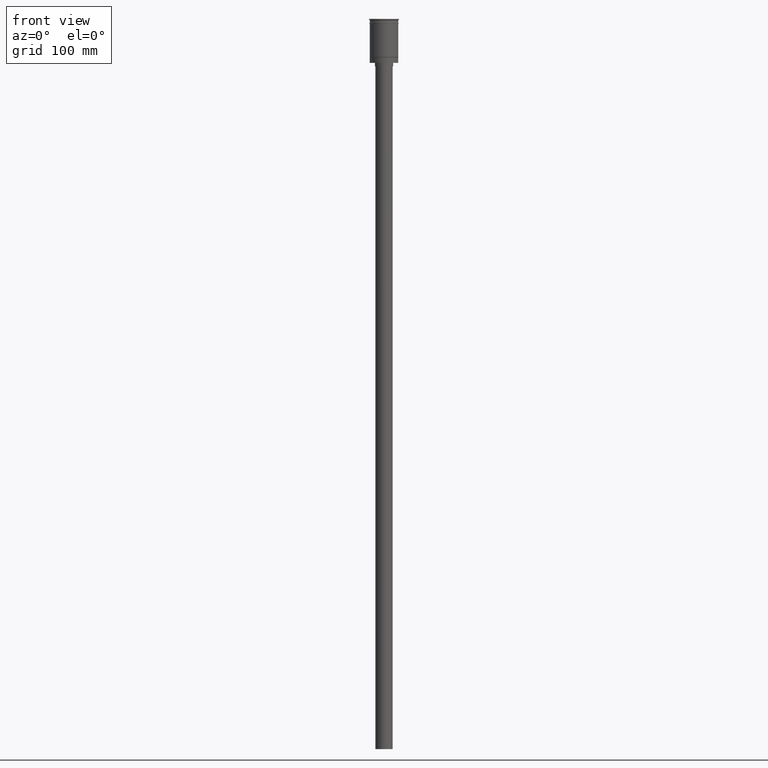
[diagram: clean part render]
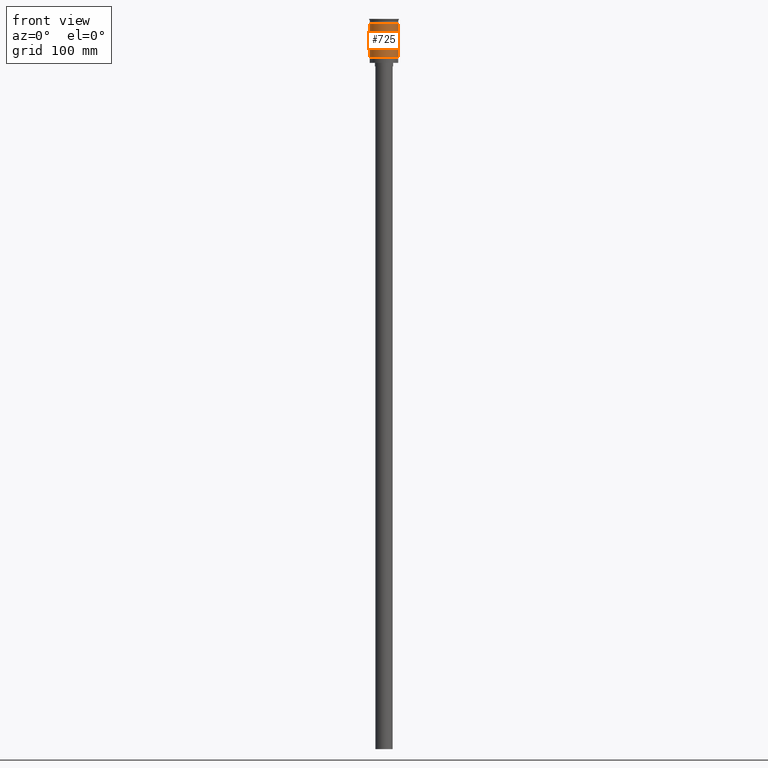
[diagram: same view with one face highlighted and labeled with its STEP entity id]
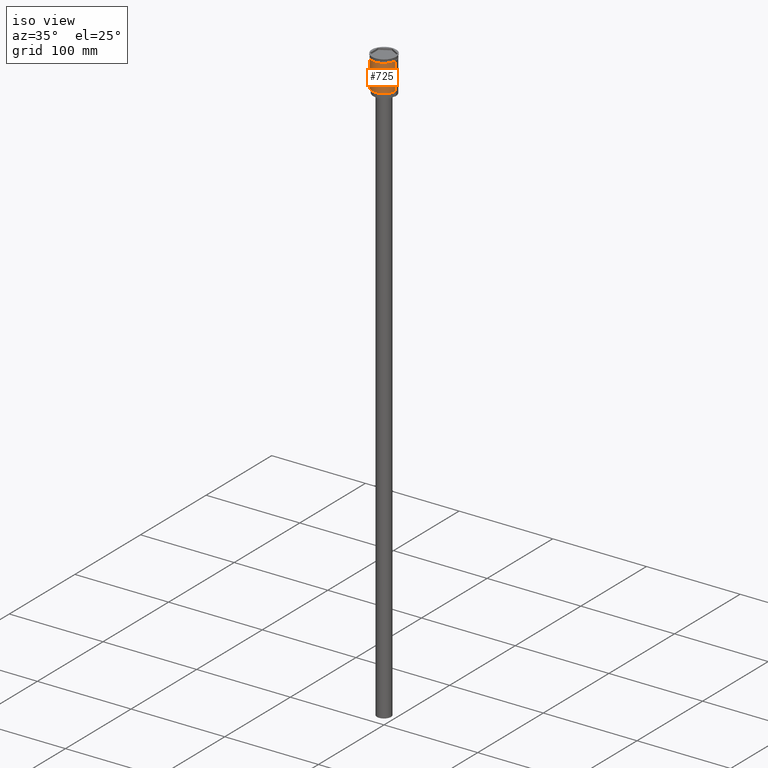
[diagram: same view with one face highlighted and labeled with its STEP entity id]
A machine part, front view. The second image highlights one B-rep face of the part: STEP entity #725.
A second angle (iso view) of the same face is appended — the face is thin or edge-on in the first view.
In plain terms, the highlighted cylindrical surface (edge-blend (fillet) strip) has radius 12.5 mm, axis along (-0, -0, 1).
Its self-contained STEP definition (entity closure, byte-faithful):
#16 = CARTESIAN_POINT ( 'NONE',  ( -12.49999999999999645, 1.530808498934191127E-15, 0.000000000000000000 ) ) ;
#48 = EDGE_CURVE ( 'NONE', #1187, #368, #1163, .T. ) ;
#84 = DIRECTION ( 'NONE',  ( 1.000000000000000000, 0.000000000000000000, 0.000000000000000000 ) ) ;
#107 = EDGE_CURVE ( 'NONE', #1187, #407, #1109, .T. ) ;
#119 = CARTESIAN_POINT ( 'NONE',  ( 0.000000000000000000, 0.000000000000000000, 0.000000000000000000 ) ) ;
#202 = ORIENTED_EDGE ( 'NONE', *, *, #1028, .T. ) ;
#284 = ORIENTED_EDGE ( 'NONE', *, *, #48, .T. ) ;
#288 = DIRECTION ( 'NONE',  ( 1.000000000000000000, 0.000000000000000000, 0.000000000000000000 ) ) ;
#294 = CARTESIAN_POINT ( 'NONE',  ( 12.49999999999999645, 0.000000000000000000, 0.000000000000000000 ) ) ;
#360 = FACE_OUTER_BOUND ( 'NONE', #989, .T. ) ;
#368 = VERTEX_POINT ( 'NONE', #1498 ) ;
#384 = CIRCLE ( 'NONE', #1058, 12.49999999999999822 ) ;
#407 = VERTEX_POINT ( 'NONE', #1004 ) ;
#408 = AXIS2_PLACEMENT_3D ( 'NONE', #119, #605, #84 ) ;
#457 = AXIS2_PLACEMENT_3D ( 'NONE', #1467, #728, #1237 ) ;
#605 = DIRECTION ( 'NONE',  ( -0.000000000000000000, -0.000000000000000000, 1.000000000000000000 ) ) ;
#656 = LINE ( 'NONE', #294, #1166 ) ;
#679 = VERTEX_POINT ( 'NONE', #1096 ) ;
#725 = ADVANCED_FACE ( 'NONE', ( #360 ), #1461, .T. ) ;
#727 = CARTESIAN_POINT ( 'NONE',  ( -12.49999999999999289, 0.000000000000000000, -33.30000000000005400 ) ) ;
#728 = DIRECTION ( 'NONE',  ( -0.000000000000000000, -0.000000000000000000, 1.000000000000000000 ) ) ;
#921 = VECTOR ( 'NONE', #1129, 1000.000000000000000 ) ;
#939 = DIRECTION ( 'NONE',  ( -0.000000000000000000, -0.000000000000000000, 1.000000000000000000 ) ) ;
#988 = EDGE_CURVE ( 'NONE', #407, #679, #384, .T. ) ;
#989 = EDGE_LOOP ( 'NONE', ( #1504, #284, #202, #1551 ) ) ;
#1004 = CARTESIAN_POINT ( 'NONE',  ( -12.50000000000000000, 1.530808498934191521E-15, -3.999999999999996447 ) ) ;
#1028 = EDGE_CURVE ( 'NONE', #368, #679, #656, .T. ) ;
#1058 = AXIS2_PLACEMENT_3D ( 'NONE', #1558, #939, #288 ) ;
#1096 = CARTESIAN_POINT ( 'NONE',  ( 12.49999999999999822, 0.000000000000000000, -3.999999999999996447 ) ) ;
#1109 = LINE ( 'NONE', #16, #921 ) ;
#1129 = DIRECTION ( 'NONE',  ( -0.000000000000000000, -0.000000000000000000, 1.000000000000000000 ) ) ;
#1163 = CIRCLE ( 'NONE', #457, 12.49999999999999645 ) ;
#1166 = VECTOR ( 'NONE', #1307, 1000.000000000000000 ) ;
#1187 = VERTEX_POINT ( 'NONE', #727 ) ;
#1237 = DIRECTION ( 'NONE',  ( -1.000000000000000000, 0.000000000000000000, 0.000000000000000000 ) ) ;
#1307 = DIRECTION ( 'NONE',  ( -0.000000000000000000, -0.000000000000000000, 1.000000000000000000 ) ) ;
#1461 = CYLINDRICAL_SURFACE ( 'NONE', #408, 12.49999999999999645 ) ;
#1467 = CARTESIAN_POINT ( 'NONE',  ( 0.000000000000000000, 0.000000000000000000, -33.30000000000005400 ) ) ;
#1498 = CARTESIAN_POINT ( 'NONE',  ( 12.49999999999999645, 1.530808498934191127E-15, -33.30000000000005400 ) ) ;
#1504 = ORIENTED_EDGE ( 'NONE', *, *, #107, .F. ) ;
#1551 = ORIENTED_EDGE ( 'NONE', *, *, #988, .F. ) ;
#1558 = CARTESIAN_POINT ( 'NONE',  ( 0.000000000000000000, 0.000000000000000000, -3.999999999999996447 ) ) ;